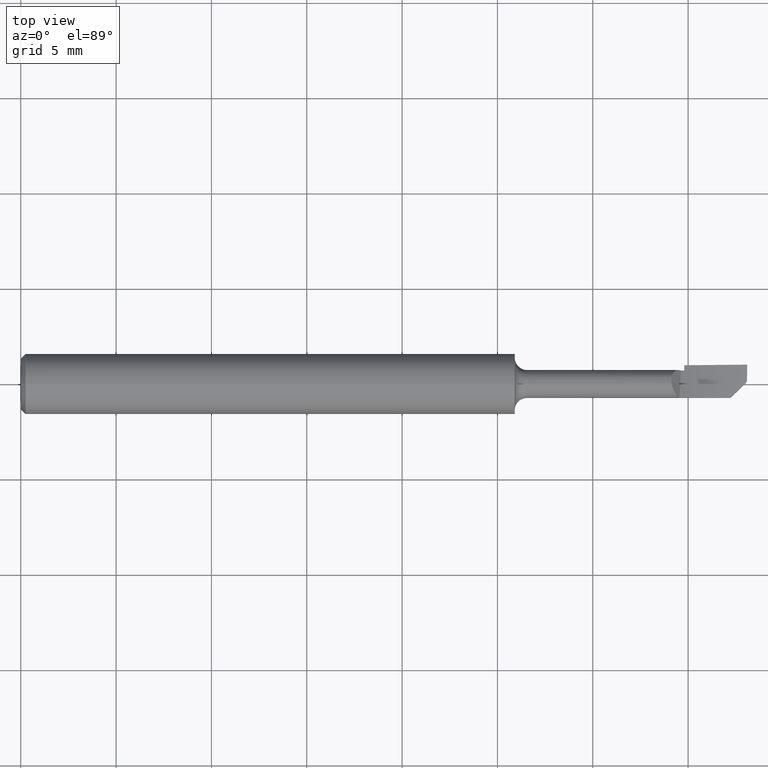
[diagram: clean part render]
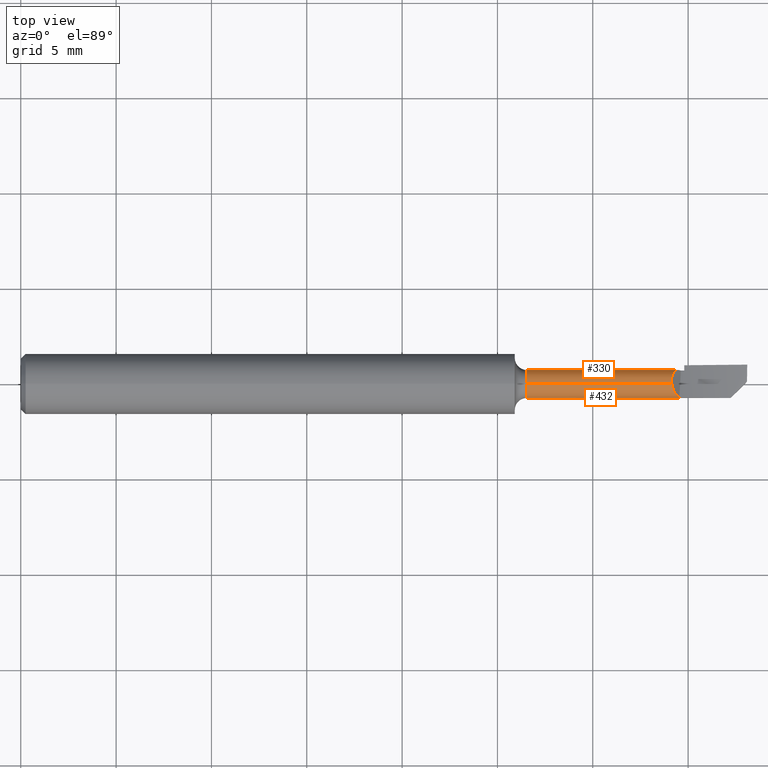
[diagram: same view with one multi-face feature highlighted, each face labeled with its STEP entity id]
A machine part, top view. The highlighted faces form ONE feature: a constant-radius fillet chain: 2 tangent blend faces with common blend radius 0.7366 mm. The faces share edges in the B-rep.
Their STEP definitions:
[1] entity #330 (Cylinder):
#20 = CARTESIAN_POINT ( 'NONE',  ( 1.351843152719554908, 0.02721280358920947010, 0.01011102640573735383 ) ) ;
#22 = CARTESIAN_POINT ( 'NONE',  ( 1.370000000000000995, 0.02801306668690308962, -0.007501206222680386997 ) ) ;
#23 = B_SPLINE_CURVE_WITH_KNOTS ( 'NONE', 3,
 ( #263, #132, #554, #498, #258, #196, #428, #433, #507, #365, #677, #561, #315, #323, #20, #625, #558, #255, #441 ),
 .UNSPECIFIED., .F., .F.,
 ( 4, 2, 2, 2, 1, 1, 1, 2, 2, 2, 4 ),
 ( 0.000000000000000000, 0.2500000000000942579, 0.3750000000001443290, 0.4375000000001694755, 0.4687500000001820211, 0.4843750000001847411, 0.4921875000001861844, 0.4960937500001904032, 0.5000000000001946221, 0.7500000000000972555, 1.000000000000000000 ),
 .UNSPECIFIED. ) ;
#24 = VERTEX_POINT ( 'NONE', #235 ) ;
#26 = DIRECTION ( 'NONE',  ( -1.000000000000000000, -0.000000000000000000, -0.000000000000000000 ) ) ;
#37 = DIRECTION ( 'NONE',  ( -1.000000000000000000, -0.000000000000000000, -0.000000000000000000 ) ) ;
#53 = CARTESIAN_POINT ( 'NONE',  ( 1.045000000000000373, 0.000000000000000000, 0.02900000000000007086 ) ) ;
#73 = B_SPLINE_CURVE_WITH_KNOTS ( 'NONE', 3,
 ( #425, #740, #203, #309 ),
 .UNSPECIFIED., .F., .F.,
 ( 4, 4 ),
 ( 0.000000000000000000, 1.000000000000000000 ),
 .UNSPECIFIED. ) ;
#87 = B_SPLINE_CURVE_WITH_KNOTS ( 'NONE', 3,
 ( #434, #683, #148, #382, #388, #378 ),
 .UNSPECIFIED., .F., .F.,
 ( 4, 2, 4 ),
 ( 0.9496888431844439094, 0.9748444215922219547, 1.000000000000000000 ),
 .UNSPECIFIED. ) ;
#88 = VERTEX_POINT ( 'NONE', #53 ) ;
#95 = CARTESIAN_POINT ( 'NONE',  ( 1.366483144912173930, 0.02796552330872572115, -0.007678755777169924551 ) ) ;
#104 = ORIENTED_EDGE ( 'NONE', *, *, #239, .T. ) ;
#106 = DIRECTION ( 'NONE',  ( 0.000000000000000000, 0.000000000000000000, 1.000000000000000000 ) ) ;
#115 = VERTEX_POINT ( 'NONE', #566 ) ;
#122 = EDGE_CURVE ( 'NONE', #24, #253, #73, .T. ) ;
#132 = CARTESIAN_POINT ( 'NONE',  ( 1.344360962783671454, 0.01499331302564882798, 0.02504737014125070840 ) ) ;
#140 =( BOUNDED_CURVE ( )  B_SPLINE_CURVE ( 2, ( #492, #95, #22 ),
 .UNSPECIFIED., .F., .T. ) 
 B_SPLINE_CURVE_WITH_KNOTS ( ( 3, 3 ),
 ( 0.6843654409706481090, 0.7004615063419189491 ),
 .UNSPECIFIED. ) 
 CURVE ( )  GEOMETRIC_REPRESENTATION_ITEM ( )  RATIONAL_B_SPLINE_CURVE ( ( 0.9792068466601346888, 0.9790463917204700328, 0.9789252863740102173 ) ) 
 REPRESENTATION_ITEM ( '' )  );
#148 = CARTESIAN_POINT ( 'NONE',  ( 1.344175667506401828, 0.0007500834462804991222, 0.02899269570108404734 ) ) ;
#159 = EDGE_CURVE ( 'NONE', #24, #383, #23, .T. ) ;
#169 = ORIENTED_EDGE ( 'NONE', *, *, #159, .T. ) ;
#184 = EDGE_CURVE ( 'NONE', #453, #268, #604, .T. ) ;
#191 = DIRECTION ( 'NONE',  ( 0.000000000000000000, 0.000000000000000000, 1.000000000000000000 ) ) ;
#196 = CARTESIAN_POINT ( 'NONE',  ( 1.348826993607886049, 0.02449701040838764970, 0.01554878266840352408 ) ) ;
#202 = AXIS2_PLACEMENT_3D ( 'NONE', #327, #26, #191 ) ;
#203 = CARTESIAN_POINT ( 'NONE',  ( 1.343999999999999417, 0.005462478541139549615, 0.02804805163909921545 ) ) ;
#212 = AXIS2_PLACEMENT_3D ( 'NONE', #720, #706, #106 ) ;
#223 = ORIENTED_EDGE ( 'NONE', *, *, #122, .F. ) ;
#235 = CARTESIAN_POINT ( 'NONE',  ( 1.344000000000000306, 0.01194798285641748316, 0.02642433926634223107 ) ) ;
#239 = EDGE_CURVE ( 'NONE', #268, #536, #337, .T. ) ;
#253 = VERTEX_POINT ( 'NONE', #447 ) ;
#255 = CARTESIAN_POINT ( 'NONE',  ( 1.359724827283130377, 0.02932526709454047129, -0.002847079724959575633 ) ) ;
#258 = CARTESIAN_POINT ( 'NONE',  ( 1.347622489973717697, 0.02292405174080325986, 0.01785946520634259030 ) ) ;
#259 = ORIENTED_EDGE ( 'NONE', *, *, #322, .F. ) ;
#263 = CARTESIAN_POINT ( 'NONE',  ( 1.344000000000000306, 0.01194798285641748316, 0.02642433926634223107 ) ) ;
#268 = VERTEX_POINT ( 'NONE', #759 ) ;
#276 = ORIENTED_EDGE ( 'NONE', *, *, #774, .T. ) ;
#297 = CYLINDRICAL_SURFACE ( 'NONE', #735, 0.02900000000000003617 ) ;
#309 = CARTESIAN_POINT ( 'NONE',  ( 1.344000000000000306, 0.002234151730270185661, 0.02891381272067267139 ) ) ;
#315 = CARTESIAN_POINT ( 'NONE',  ( 1.351082740088656475, 0.02664559147929404515, 0.01144622539910868965 ) ) ;
#317 = ORIENTED_EDGE ( 'NONE', *, *, #788, .T. ) ;
#322 = EDGE_CURVE ( 'NONE', #115, #88, #664, .T. ) ;
#323 = CARTESIAN_POINT ( 'NONE',  ( 1.351134900953135265, 0.02668471954386657241, 0.01135456625681333272 ) ) ;
#327 = CARTESIAN_POINT ( 'NONE',  ( 1.370000000000000329, 0.000000000000000000, 0.000000000000000000 ) ) ;
#330 = ADVANCED_FACE ( 'NONE', ( #717 ), #297, .T. ) ;
#337 = LINE ( 'NONE', #766, #451 ) ;
#341 = CARTESIAN_POINT ( 'NONE',  ( 1.362968313061897030, 0.02791573318773603665, -0.007855688422431681209 ) ) ;
#365 = CARTESIAN_POINT ( 'NONE',  ( 1.350709363172423183, 0.02635427538254515520, 0.01210590748210442838 ) ) ;
#377 = EDGE_CURVE ( 'NONE', #88, #536, #386, .T. ) ;
#378 = CARTESIAN_POINT ( 'NONE',  ( 1.344000000000000306, 0.002234151730270185661, 0.02891381272067267139 ) ) ;
#382 = CARTESIAN_POINT ( 'NONE',  ( 1.344081522667952333, 0.001495256800732760408, 0.02896382634065988726 ) ) ;
#383 = VERTEX_POINT ( 'NONE', #341 ) ;
#386 = CIRCLE ( 'NONE', #212, 0.02900000000000007086 ) ;
#388 = CARTESIAN_POINT ( 'NONE',  ( 1.344038699846792140, 0.001865842263042538423, 0.02894227192546828739 ) ) ;
#422 = VECTOR ( 'NONE', #532, 39.37007874015748143 ) ;
#425 = CARTESIAN_POINT ( 'NONE',  ( 1.344000000000000306, 0.01194798285641748316, 0.02642433926634223107 ) ) ;
#428 = CARTESIAN_POINT ( 'NONE',  ( 1.349254436275052038, 0.02498871357019934528, 0.01474660953191499549 ) ) ;
#433 = CARTESIAN_POINT ( 'NONE',  ( 1.349934512459467495, 0.02567087733510885900, 0.01349928262874934212 ) ) ;
#434 = CARTESIAN_POINT ( 'NONE',  ( 1.344279704701649258, -1.051655313711388906E-06, 0.02900531566010898857 ) ) ;
#441 = CARTESIAN_POINT ( 'NONE',  ( 1.362968313061897030, 0.02791573318773603665, -0.007855688422431681209 ) ) ;
#447 = CARTESIAN_POINT ( 'NONE',  ( 1.344000000000000306, 0.002234151730270185661, 0.02891381272067267139 ) ) ;
#451 = VECTOR ( 'NONE', #37, 39.37007874015748143 ) ;
#453 = VERTEX_POINT ( 'NONE', #598 ) ;
#472 = CARTESIAN_POINT ( 'NONE',  ( 0.000000000000000000, 0.000000000000000000, 0.02900000000000003617 ) ) ;
#492 = CARTESIAN_POINT ( 'NONE',  ( 1.362968313061897030, 0.02791573318773603665, -0.007855688422431681209 ) ) ;
#498 = CARTESIAN_POINT ( 'NONE',  ( 1.346923253374048723, 0.02174496842412329545, 0.01927158703929364794 ) ) ;
#507 = CARTESIAN_POINT ( 'NONE',  ( 1.350284278597591481, 0.02599811356063074300, 0.01286461622531508489 ) ) ;
#532 = DIRECTION ( 'NONE',  ( -1.000000000000000000, -0.000000000000000000, -0.000000000000000000 ) ) ;
#535 = DIRECTION ( 'NONE',  ( 0.000000000000000000, 0.000000000000000000, 1.000000000000000000 ) ) ;
#536 = VERTEX_POINT ( 'NONE', #552 ) ;
#540 = CARTESIAN_POINT ( 'NONE',  ( 0.000000000000000000, 0.000000000000000000, 0.000000000000000000 ) ) ;
#552 = CARTESIAN_POINT ( 'NONE',  ( 1.045000000000000373, 3.551475717527332615E-18, -0.02900000000000007086 ) ) ;
#554 = CARTESIAN_POINT ( 'NONE',  ( 1.345136841044362264, 0.01792130582730132662, 0.02308197722382315797 ) ) ;
#558 = CARTESIAN_POINT ( 'NONE',  ( 1.357117877114489390, 0.02914455547433152105, 0.001505839664468300613 ) ) ;
#561 = CARTESIAN_POINT ( 'NONE',  ( 1.351019987044591142, 0.02659785948365072858, 0.01155670766510082104 ) ) ;
#566 = CARTESIAN_POINT ( 'NONE',  ( 1.344279704701649258, -1.051655313711388906E-06, 0.02900531566010898857 ) ) ;
#598 = CARTESIAN_POINT ( 'NONE',  ( 1.370000000000000995, 0.02801306668690308962, -0.007501206222680386997 ) ) ;
#604 = CIRCLE ( 'NONE', #202, 0.02900000000000000147 ) ;
#625 = CARTESIAN_POINT ( 'NONE',  ( 1.353177039832701878, 0.02807909039746776456, 0.007952191480485542793 ) ) ;
#646 = ORIENTED_EDGE ( 'NONE', *, *, #184, .T. ) ;
#664 = LINE ( 'NONE', #472, #422 ) ;
#677 = CARTESIAN_POINT ( 'NONE',  ( 1.350926161479927279, 0.02652578292828249376, 0.01172212196705556091 ) ) ;
#683 = CARTESIAN_POINT ( 'NONE',  ( 1.344235539540598046, 0.0003176009087004030861, 0.02900000756922955711 ) ) ;
#706 = DIRECTION ( 'NONE',  ( -1.000000000000000000, -0.000000000000000000, -0.000000000000000000 ) ) ;
#717 = FACE_OUTER_BOUND ( 'NONE', #760, .T. ) ;
#720 = CARTESIAN_POINT ( 'NONE',  ( 1.045000000000000373, 0.000000000000000000, 0.000000000000000000 ) ) ;
#735 = AXIS2_PLACEMENT_3D ( 'NONE', #540, #793, #535 ) ;
#740 = CARTESIAN_POINT ( 'NONE',  ( 1.343999999999999417, 0.008700994265474598990, 0.02721809081443668510 ) ) ;
#759 = CARTESIAN_POINT ( 'NONE',  ( 1.370000000000000329, 0.000000000000000000, -0.02900000000000007086 ) ) ;
#760 = EDGE_LOOP ( 'NONE', ( #646, #104, #771, #259, #276, #223, #169, #317 ) ) ;
#766 = CARTESIAN_POINT ( 'NONE',  ( 0.000000000000000000, 3.551475717527328763E-18, -0.02900000000000003617 ) ) ;
#771 = ORIENTED_EDGE ( 'NONE', *, *, #377, .F. ) ;
#774 = EDGE_CURVE ( 'NONE', #115, #253, #87, .T. ) ;
#788 = EDGE_CURVE ( 'NONE', #383, #453, #140, .T. ) ;
#793 = DIRECTION ( 'NONE',  ( -1.000000000000000000, -0.000000000000000000, -0.000000000000000000 ) ) ;
[2] entity #432 (Cylinder):
#18 = CARTESIAN_POINT ( 'NONE',  ( 1.347633158137484966, -0.01259069581526825292, 0.02618489251447412430 ) ) ;
#19 = CIRCLE ( 'NONE', #471, 0.02900000000000007086 ) ;
#30 = ORIENTED_EDGE ( 'NONE', *, *, #599, .T. ) ;
#37 = DIRECTION ( 'NONE',  ( -1.000000000000000000, -0.000000000000000000, -0.000000000000000000 ) ) ;
#47 = ORIENTED_EDGE ( 'NONE', *, *, #493, .F. ) ;
#50 = AXIS2_PLACEMENT_3D ( 'NONE', #417, #427, #538 ) ;
#53 = CARTESIAN_POINT ( 'NONE',  ( 1.045000000000000373, 0.000000000000000000, 0.02900000000000007086 ) ) ;
#79 = CARTESIAN_POINT ( 'NONE',  ( 1.465509546751889935, -0.02898045511657074830, 0.001064528645190079446 ) ) ;
#88 = VERTEX_POINT ( 'NONE', #53 ) ;
#115 = VERTEX_POINT ( 'NONE', #566 ) ;
#136 = EDGE_CURVE ( 'NONE', #455, #789, #481, .T. ) ;
#146 = CARTESIAN_POINT ( 'NONE',  ( 1.344726164215734432, -0.003004772557673362522, 0.02899992847466936058 ) ) ;
#158 = B_SPLINE_CURVE_WITH_KNOTS ( 'NONE', 3,
 ( #573, #564, #636, #318, #269, #384, #568, #699, #576, #200, #18, #332, #438, #146, #449 ),
 .UNSPECIFIED., .F., .F.,
 ( 4, 2, 2, 2, 1, 2, 2, 4 ),
 ( 0.000000000000000000, 0.2374222107961167783, 0.4748444215922335565, 0.5045221979417481295, 0.5341999742912627580, 0.5935555269902860198, 0.7122666323883386497, 0.9496888431844439094 ),
 .UNSPECIFIED. ) ;
#166 = CARTESIAN_POINT ( 'NONE',  ( 1.465509546751889935, -0.02898045511657074830, 0.001064528645190079446 ) ) ;
#198 = CARTESIAN_POINT ( 'NONE',  ( 1.045000000000000373, 0.000000000000000000, 0.000000000000000000 ) ) ;
#200 = CARTESIAN_POINT ( 'NONE',  ( 1.348641358214019315, -0.01492363627752968554, 0.02488129085342630220 ) ) ;
#207 = VERTEX_POINT ( 'NONE', #216 ) ;
#216 = CARTESIAN_POINT ( 'NONE',  ( 1.359812946886974183, -0.02825286555653415410, 0.006540304873964866011 ) ) ;
#237 = EDGE_CURVE ( 'NONE', #268, #789, #281, .T. ) ;
#239 = EDGE_CURVE ( 'NONE', #268, #536, #337, .T. ) ;
#245 = DIRECTION ( 'NONE',  ( -1.000000000000000000, -0.000000000000000000, -0.000000000000000000 ) ) ;
#251 = CARTESIAN_POINT ( 'NONE',  ( 1.494490001868460816, 1.707404996040164512E-17, -0.02900000000000007086 ) ) ;
#254 = FACE_OUTER_BOUND ( 'NONE', #522, .T. ) ;
#268 = VERTEX_POINT ( 'NONE', #759 ) ;
#269 = CARTESIAN_POINT ( 'NONE',  ( 1.351339622621704484, -0.02006848466437484782, 0.02105972589682419266 ) ) ;
#281 = LINE ( 'NONE', #387, #618 ) ;
#295 = EDGE_CURVE ( 'NONE', #455, #207, #757, .T. ) ;
#318 = CARTESIAN_POINT ( 'NONE',  ( 1.352629411863615516, -0.02204390430116667798, 0.01911207971779663867 ) ) ;
#319 = CARTESIAN_POINT ( 'NONE',  ( 1.494490001868460816, 1.707404996040164512E-17, -0.02900000000000007086 ) ) ;
#322 = EDGE_CURVE ( 'NONE', #115, #88, #664, .T. ) ;
#332 = CARTESIAN_POINT ( 'NONE',  ( 1.347036078512088064, -0.01099654640964824355, 0.02688729779582001850 ) ) ;
#337 = LINE ( 'NONE', #766, #451 ) ;
#353 = CYLINDRICAL_SURFACE ( 'NONE', #50, 0.02900000000000003617 ) ;
#379 = ORIENTED_EDGE ( 'NONE', *, *, #237, .T. ) ;
#384 = CARTESIAN_POINT ( 'NONE',  ( 1.350216892744017683, -0.01806687995065799426, 0.02268633897093913152 ) ) ;
#387 = CARTESIAN_POINT ( 'NONE',  ( 1.300000000000000044, 0.000000000000000000, -0.02900000000000007086 ) ) ;
#400 = ORIENTED_EDGE ( 'NONE', *, *, #322, .T. ) ;
#417 = CARTESIAN_POINT ( 'NONE',  ( 0.000000000000000000, 0.000000000000000000, 0.000000000000000000 ) ) ;
#422 = VECTOR ( 'NONE', #532, 39.37007874015748143 ) ;
#427 = DIRECTION ( 'NONE',  ( -1.000000000000000000, -0.000000000000000000, -0.000000000000000000 ) ) ;
#432 = ADVANCED_FACE ( 'NONE', ( #254 ), #353, .T. ) ;
#438 = CARTESIAN_POINT ( 'NONE',  ( 1.345470000912773800, -0.006204670990899953907, 0.02852902593320175151 ) ) ;
#448 = ORIENTED_EDGE ( 'NONE', *, *, #136, .F. ) ;
#449 = CARTESIAN_POINT ( 'NONE',  ( 1.344279704701649258, -1.051655313711388906E-06, 0.02900531566010898857 ) ) ;
#451 = VECTOR ( 'NONE', #37, 39.37007874015748143 ) ;
#455 = VERTEX_POINT ( 'NONE', #496 ) ;
#471 = AXIS2_PLACEMENT_3D ( 'NONE', #198, #245, #544 ) ;
#472 = CARTESIAN_POINT ( 'NONE',  ( 0.000000000000000000, 0.000000000000000000, 0.02900000000000003617 ) ) ;
#481 =( BOUNDED_CURVE ( )  B_SPLINE_CURVE ( 3, ( #79, #614, #673, #319 ),
 .UNSPECIFIED., .F., .T. ) 
 B_SPLINE_CURVE_WITH_KNOTS ( ( 4, 4 ),
 ( 6.246469174072001529, 7.853981633974489895 ),
 .UNSPECIFIED. ) 
 CURVE ( )  GEOMETRIC_REPRESENTATION_ITEM ( )  RATIONAL_B_SPLINE_CURVE ( ( 1.000000000000000000, 0.7960048308304701337, 0.7960048308304701337, 1.000000000000000000 ) ) 
 REPRESENTATION_ITEM ( '' )  );
#493 = EDGE_CURVE ( 'NONE', #536, #88, #19, .T. ) ;
#496 = CARTESIAN_POINT ( 'NONE',  ( 1.465509546751889935, -0.02898045511657074830, 0.001064528645190079446 ) ) ;
#522 = EDGE_LOOP ( 'NONE', ( #590, #379, #448, #567, #30, #400, #47 ) ) ;
#532 = DIRECTION ( 'NONE',  ( -1.000000000000000000, -0.000000000000000000, -0.000000000000000000 ) ) ;
#536 = VERTEX_POINT ( 'NONE', #552 ) ;
#538 = DIRECTION ( 'NONE',  ( 0.000000000000000000, 0.000000000000000000, 1.000000000000000000 ) ) ;
#544 = DIRECTION ( 'NONE',  ( 0.000000000000000000, 0.000000000000000000, 1.000000000000000000 ) ) ;
#552 = CARTESIAN_POINT ( 'NONE',  ( 1.045000000000000373, 3.551475717527332615E-18, -0.02900000000000007086 ) ) ;
#564 = CARTESIAN_POINT ( 'NONE',  ( 1.357666008102996980, -0.02732945430762704145, 0.01053007296735685924 ) ) ;
#566 = CARTESIAN_POINT ( 'NONE',  ( 1.344279704701649258, -1.051655313711388906E-06, 0.02900531566010898857 ) ) ;
#567 = ORIENTED_EDGE ( 'NONE', *, *, #295, .T. ) ;
#568 = CARTESIAN_POINT ( 'NONE',  ( 1.350140423360584041, -0.01793032781908208279, 0.02279731573702666395 ) ) ;
#573 = CARTESIAN_POINT ( 'NONE',  ( 1.359812946886974183, -0.02825286555653415410, 0.006540304873964866011 ) ) ;
#576 = CARTESIAN_POINT ( 'NONE',  ( 1.349173603411895517, -0.01607537474992337331, 0.02416714976764065825 ) ) ;
#590 = ORIENTED_EDGE ( 'NONE', *, *, #239, .F. ) ;
#599 = EDGE_CURVE ( 'NONE', #207, #115, #158, .T. ) ;
#608 = CARTESIAN_POINT ( 'NONE',  ( 1.359812946886974183, -0.02825286555653415410, 0.006540304873964866011 ) ) ;
#614 = CARTESIAN_POINT ( 'NONE',  ( 1.464867652343246451, -0.02962234952521403120, -0.01641024028969627346 ) ) ;
#618 = VECTOR ( 'NONE', #634, 39.37007874015748143 ) ;
#634 = DIRECTION ( 'NONE',  ( 1.000000000000000000, -0.000000000000000000, -0.000000000000000000 ) ) ;
#636 = CARTESIAN_POINT ( 'NONE',  ( 1.355792604604262097, -0.02567552928509163682, 0.01385541424529812722 ) ) ;
#645 = CARTESIAN_POINT ( 'NONE',  ( 1.412853423040296486, -0.02887860673711900583, 0.003837222710524207554 ) ) ;
#664 = LINE ( 'NONE', #472, #422 ) ;
#673 = CARTESIAN_POINT ( 'NONE',  ( 1.477003447669319014, -0.01748655419914139919, -0.02900000000000016800 ) ) ;
#699 = CARTESIAN_POINT ( 'NONE',  ( 1.349748066349187203, -0.01719362167920661724, 0.02335794584431066107 ) ) ;
#757 =( BOUNDED_CURVE ( )  B_SPLINE_CURVE ( 2, ( #166, #645, #608 ),
 .UNSPECIFIED., .F., .T. ) 
 B_SPLINE_CURVE_WITH_KNOTS ( ( 3, 3 ),
 ( 0.08047774069797784813, 0.3228623492505324766 ),
 .UNSPECIFIED. ) 
 CURVE ( )  GEOMETRIC_REPRESENTATION_ITEM ( )  RATIONAL_B_SPLINE_CURVE ( ( 0.9829172617772614640, 0.9766765724518794434, 0.9793588826515089441 ) ) 
 REPRESENTATION_ITEM ( '' )  );
#759 = CARTESIAN_POINT ( 'NONE',  ( 1.370000000000000329, 0.000000000000000000, -0.02900000000000007086 ) ) ;
#766 = CARTESIAN_POINT ( 'NONE',  ( 0.000000000000000000, 3.551475717527328763E-18, -0.02900000000000003617 ) ) ;
#789 = VERTEX_POINT ( 'NONE', #251 ) ;